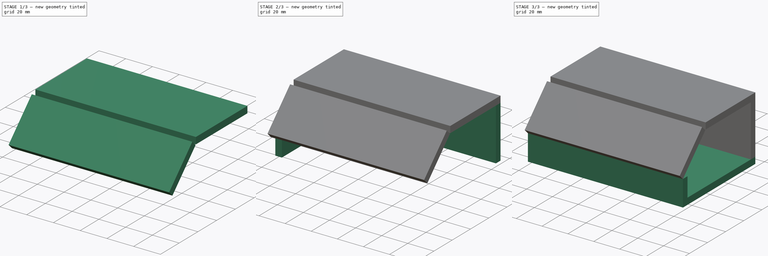
[diagram: build sequence overview — one tinted view per stage of 3, left to right]
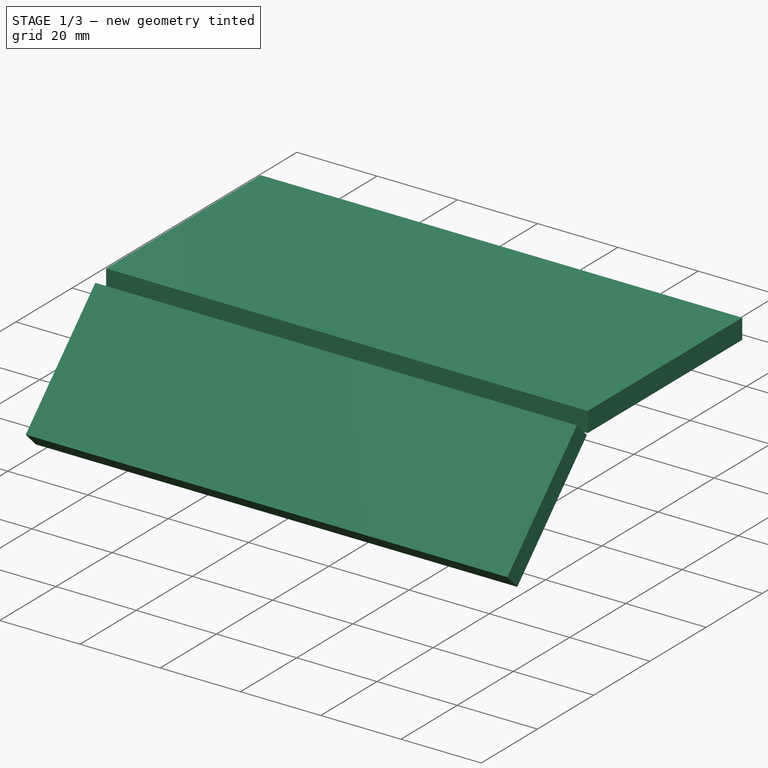
[diagram: stage 1 of 3 — iso view after this stage's code; geometry added in this stage tinted green]
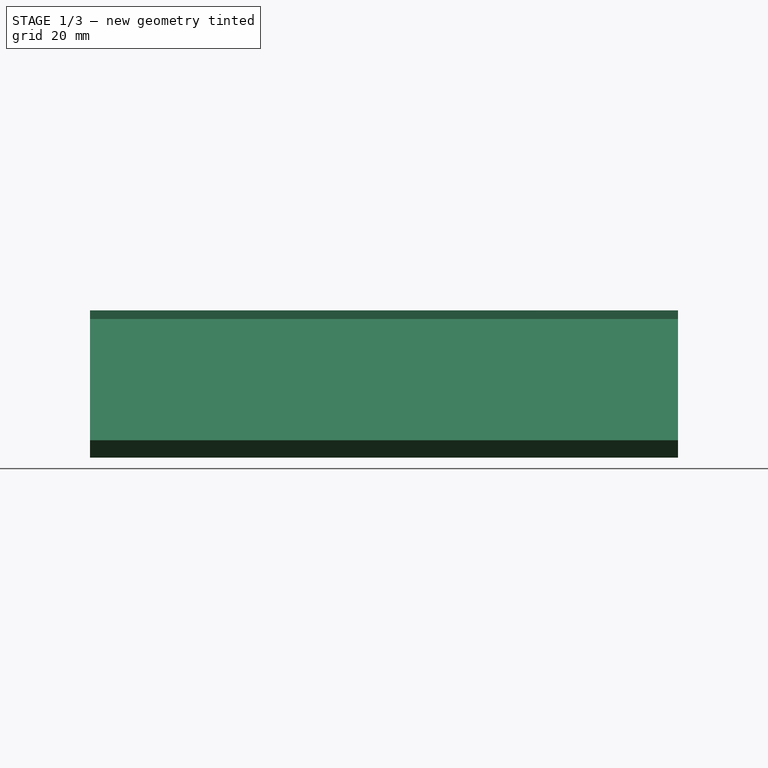
[diagram: stage 1 of 3 — front view after this stage's code; geometry added in this stage tinted green]
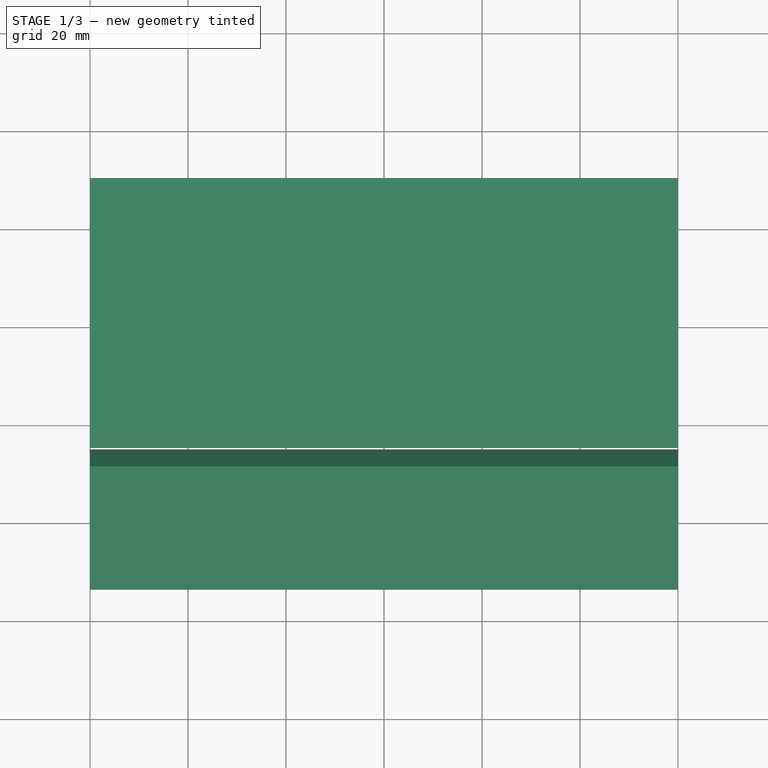
[diagram: stage 1 of 3 — top view after this stage's code; geometry added in this stage tinted green]
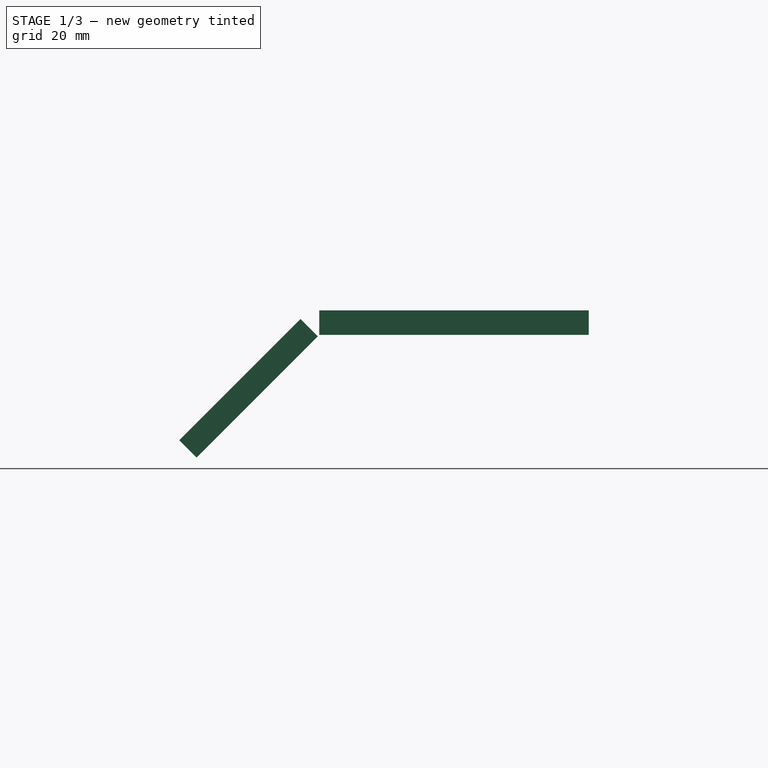
[diagram: stage 1 of 3 — right view after this stage's code; geometry added in this stage tinted green]
FCSTD DOCUMENT  (FreeCAD 0.15R4671 (Git))
Label: ctrlbox
License: All rights reserved
LicenseURL: http://en.wikipedia.org/wiki/All_rights_reserved
objects: Sketcher::SketchObject×6, PartDesign::Pad×6, Part::FeaturePython×1
note: 19 computed .brp shape members not serialized (recipe doc carries the construction recipe); baked Part::Feature solids carry a one-line shape summary decoded from their .brp

FEATURE [Sketcher::SketchObject] Sketch004
  Placement = pos=(0,0,50) rot=(1,0,0;0.785398rad)
  sketch-geometry (4):
    g0: LineSegment StartX=-60 StartY=-7.5 StartZ=0 EndX=60 EndY=-7.5 EndZ=0
    g1: LineSegment StartX=60 StartY=-7.5 StartZ=0 EndX=60 EndY=-42.5 EndZ=0
    g2: LineSegment StartX=60 StartY=-42.5 StartZ=0 EndX=-60 EndY=-42.5 EndZ=0
    g3: LineSegment StartX=-60 StartY=-42.5 StartZ=0 EndX=-60 EndY=-7.5 EndZ=0
  constraints (12):
    c: Coincident(g0,g1)
    c: Coincident(g1,g2)
    c: Coincident(g2,g3)
    c: Coincident(g3,g0)
    c: Horizontal(g0)
    c: Horizontal(g2)
    c: Vertical(g1)
    c: Vertical(g3)
    c: DistanceX(g0,g0) = 120
    c: DistanceY(g3,g3) = 35
    c: Symmetric(g0,g0,g-2)
    c: DistanceY(g0,g-1) = 7.5
FEATURE [PartDesign::Pad] Pad004
  Length = 5
  Length2 = 100
  Placement = pos=(0,0,50) rot=(1,0,0;0.785398rad)
  Sketch = -> Sketch004
  Type = 0
FEATURE [Sketcher::SketchObject] Sketch005
  Placement = pos=(0,0,45) rot=(0,0,1;0rad)
  sketch-geometry (4):
    g0: LineSegment StartX=-60 StartY=50 StartZ=0 EndX=60 EndY=50 EndZ=0
    g1: LineSegment StartX=60 StartY=50 StartZ=0 EndX=60 EndY=-5 EndZ=0
    g2: LineSegment StartX=60 StartY=-5 StartZ=0 EndX=-60 EndY=-5 EndZ=0
    g3: LineSegment StartX=-60 StartY=-5 StartZ=0 EndX=-60 EndY=50 EndZ=0
  constraints (12):
    c: Coincident(g0,g1)
    c: Coincident(g1,g2)
    c: Coincident(g2,g3)
    c: Coincident(g3,g0)
    c: Horizontal(g0)
    c: Horizontal(g2)
    c: Vertical(g1)
    c: Vertical(g3)
    c: Symmetric(g0,g0,g-2)
    c: DistanceX(g0,g0) = 120
    c: DistanceY(g3,g3) = 55
    c: DistanceY(g2,g-1) = 5
FEATURE [PartDesign::Pad] Pad005
  Length = 5
  Length2 = 100
  Placement = pos=(0,0,45) rot=(0,0,1;0rad)
  Sketch = -> Sketch005
  Type = 0
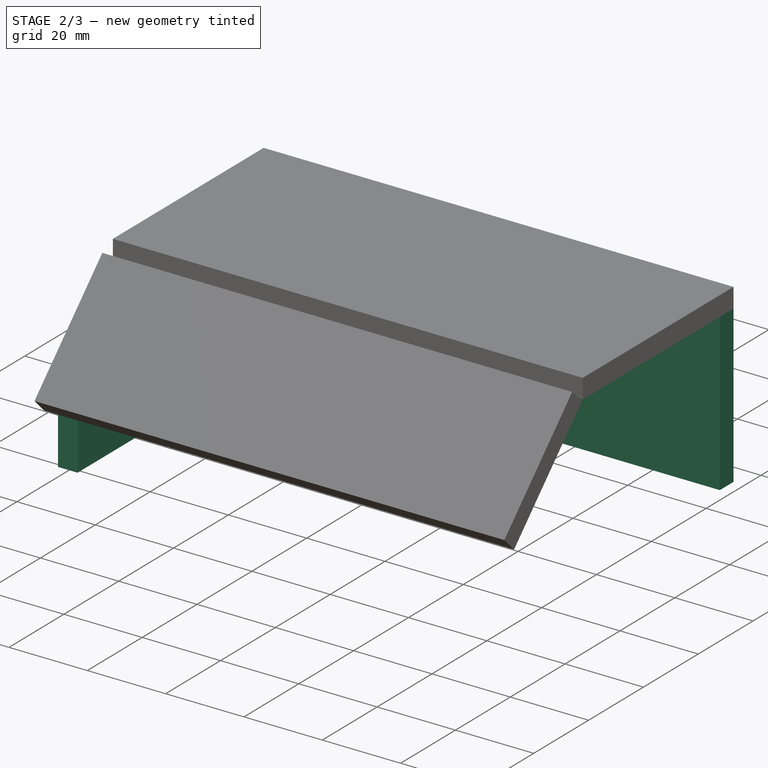
[diagram: stage 2 of 3 — iso view after this stage's code; geometry added in this stage tinted green]
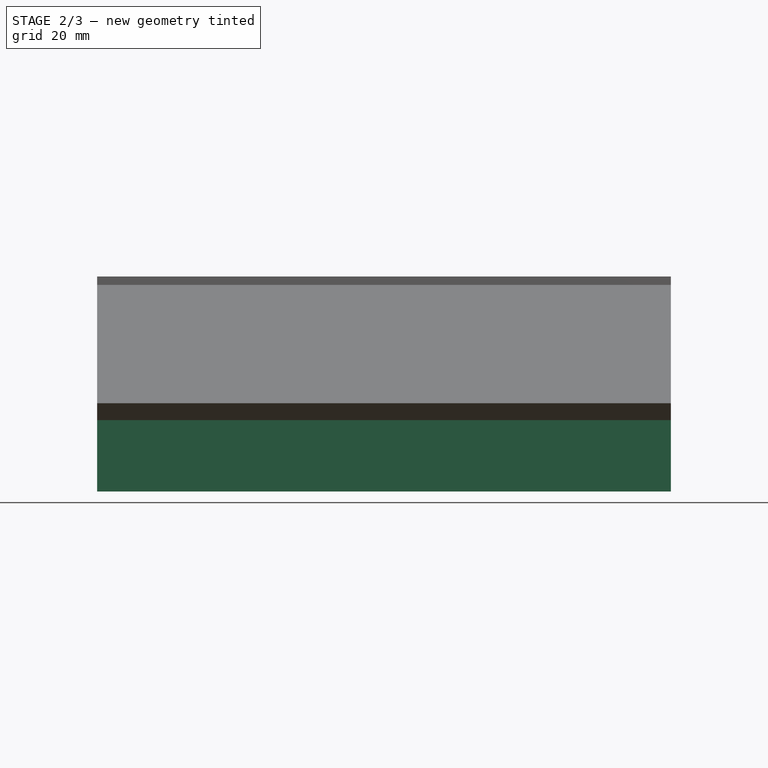
[diagram: stage 2 of 3 — front view after this stage's code; geometry added in this stage tinted green]
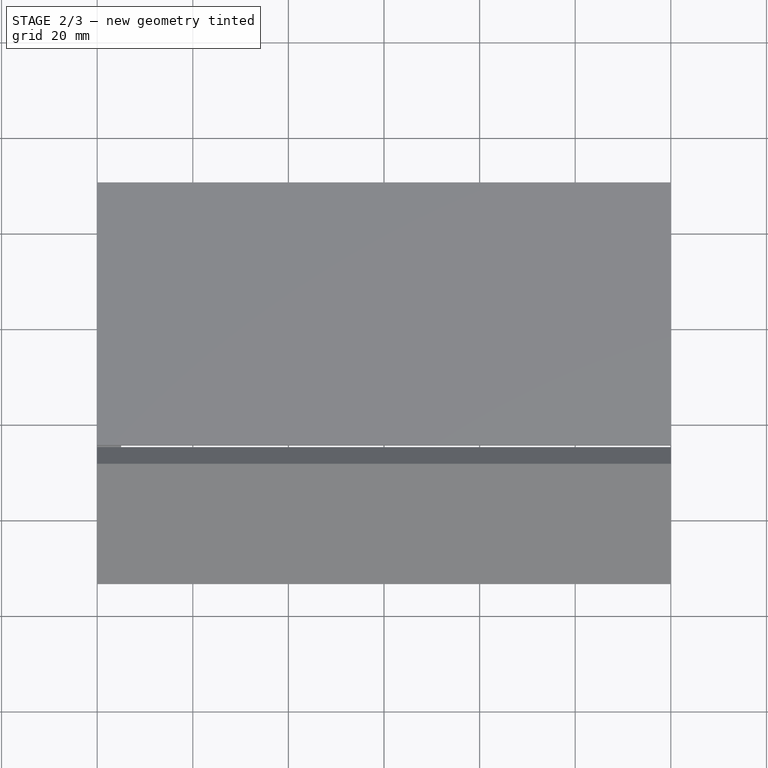
[diagram: stage 2 of 3 — top view after this stage's code; geometry added in this stage tinted green]
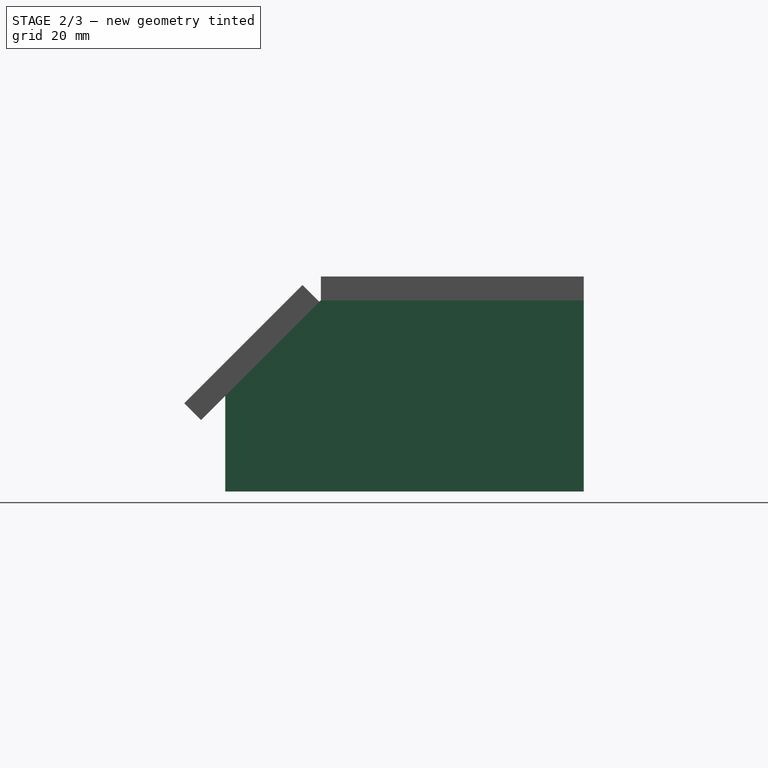
[diagram: stage 2 of 3 — right view after this stage's code; geometry added in this stage tinted green]
FEATURE [Sketcher::SketchObject] Sketch002
  Placement = pos=(0,50,0) rot=(1,0,0;1.5708rad)
  sketch-geometry (4):
    g0: LineSegment StartX=-60 StartY=45 StartZ=0 EndX=60 EndY=45 EndZ=0
    g1: LineSegment StartX=60 StartY=45 StartZ=0 EndX=60 EndY=5 EndZ=0
    g2: LineSegment StartX=60 StartY=5 StartZ=0 EndX=-60 EndY=5 EndZ=0
    g3: LineSegment StartX=-60 StartY=5 StartZ=0 EndX=-60 EndY=45 EndZ=0
  constraints (12):
    c: Coincident(g0,g1)
    c: Coincident(g1,g2)
    c: Coincident(g2,g3)
    c: Coincident(g3,g0)
    c: Horizontal(g0)
    c: Horizontal(g2)
    c: Vertical(g1)
    c: Vertical(g3)
    c: Symmetric(g0,g0,g-2)
    c: DistanceY(g-1,g2) = 5
    c: DistanceX(g0,g0) = 120
    c: DistanceY(g3,g3) = 40
FEATURE [PartDesign::Pad] Pad002
  Length = 5
  Length2 = 100
  Placement = pos=(0,50,0) rot=(1,0,0;1.5708rad)
  Sketch = -> Sketch002
  Type = 0
FEATURE [Sketcher::SketchObject] Sketch003
  Placement = pos=(55,0,0) rot=(0.57735,0.57735,0.57735;2.0944rad)
  sketch-geometry (5):
    g0: LineSegment StartX=45 StartY=45 StartZ=0 EndX=45 EndY=5 EndZ=0
    g1: LineSegment StartX=45 StartY=5 StartZ=0 EndX=-25 EndY=5 EndZ=0
    g2: LineSegment StartX=-25 StartY=5 StartZ=0 EndX=-25 EndY=25 EndZ=0
    g3: LineSegment StartX=-25 StartY=25 StartZ=0 EndX=-5 EndY=45 EndZ=0
    g4: LineSegment StartX=-5 StartY=45 StartZ=0 EndX=45 EndY=45 EndZ=0
  constraints (15):
    c: Vertical(g0)
    c: Coincident(g0,g1)
    c: Horizontal(g1)
    c: Coincident(g1,g2)
    c: Vertical(g2)
    c: DistanceY(g0,g0) = 40
    c: DistanceY(g-1,g0) = 5
    c: DistanceX(g1,g1) = 70
    c: DistanceY(g2,g2) = 20
    c: Coincident(g3,g4)
    c: Horizontal(g4)
    c: Coincident(g0,g4)
    c: Coincident(g2,g3)
    c: DistanceX(g4,g4) = 50
    c: DistanceX(g-1,g0) = 45
FEATURE [PartDesign::Pad] Pad003
  Length = 5
  Length2 = 100
  Placement = pos=(55,0,0) rot=(0.57735,0.57735,0.57735;2.0944rad)
  Sketch = -> Sketch003
  Type = 0
FEATURE [Part::FeaturePython] Clone  label="Clone of Pad003"  # Draft clone (typed FeaturePython)
  Objects = -> [Pad003]
  Placement = pos=(-60,0,0) rot=(0.57735,0.57735,0.57735;2.0944rad)
  Scale = (1,1,1)
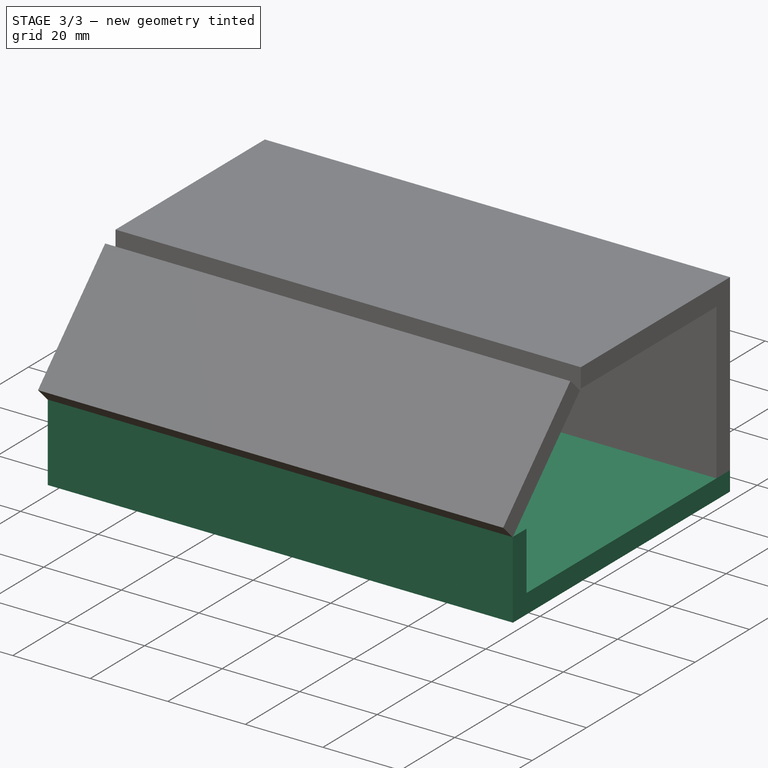
[diagram: stage 3 of 3 — iso view after this stage's code; geometry added in this stage tinted green]
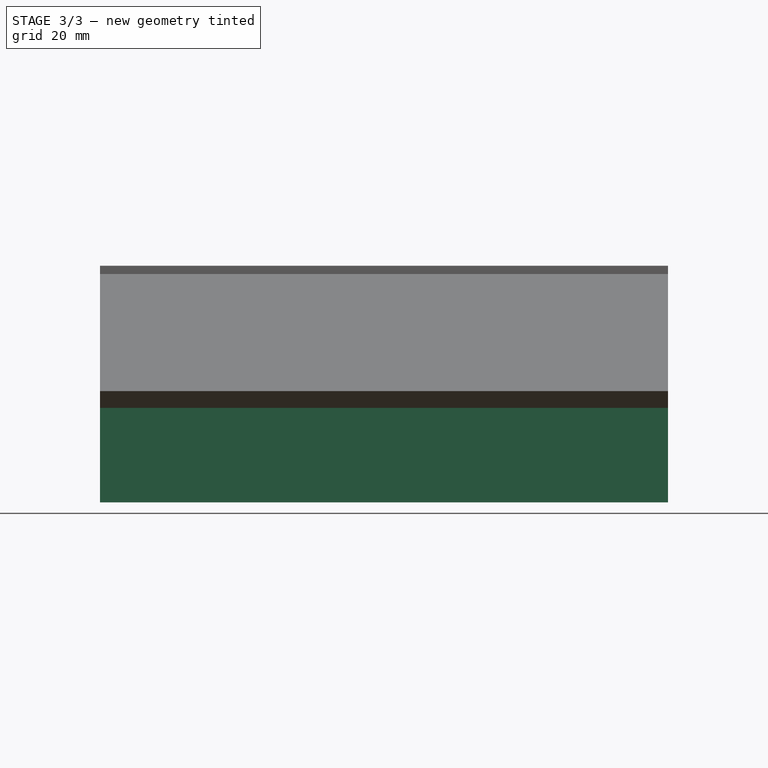
[diagram: stage 3 of 3 — front view after this stage's code; geometry added in this stage tinted green]
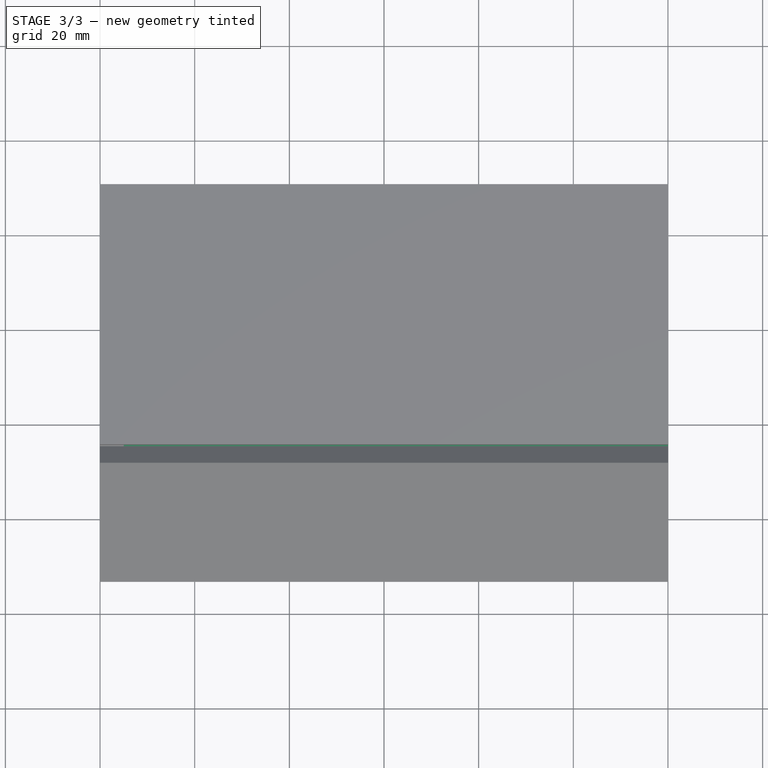
[diagram: stage 3 of 3 — top view after this stage's code; geometry added in this stage tinted green]
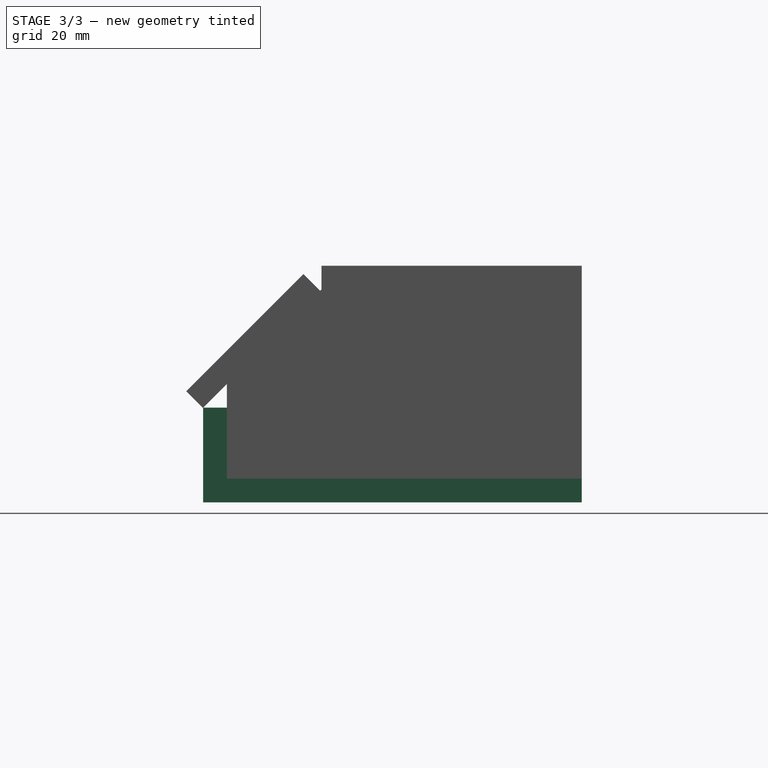
[diagram: stage 3 of 3 — right view after this stage's code; geometry added in this stage tinted green]
FEATURE [Sketcher::SketchObject] Sketch
  sketch-geometry (4):
    g0: LineSegment StartX=-60 StartY=50 StartZ=0 EndX=60 EndY=50 EndZ=0
    g1: LineSegment StartX=60 StartY=50 StartZ=0 EndX=60 EndY=-30 EndZ=0
    g2: LineSegment StartX=60 StartY=-30 StartZ=0 EndX=-60 EndY=-30 EndZ=0
    g3: LineSegment StartX=-60 StartY=-30 StartZ=0 EndX=-60 EndY=50 EndZ=0
  constraints (12):
    c: Coincident(g0,g1)
    c: Coincident(g1,g2)
    c: Coincident(g2,g3)
    c: Coincident(g3,g0)
    c: Horizontal(g0)
    c: Horizontal(g2)
    c: Vertical(g1)
    c: Vertical(g3)
    c: Symmetric(g0,g0,g-2)
    c: DistanceX(g0,g0) = 120
    c: DistanceY(g3,g3) = 80
    c: DistanceY(g-1,g0) = 50
FEATURE [PartDesign::Pad] Pad
  Length = 5
  Length2 = 100
  Sketch = -> Sketch
  Type = 0
FEATURE [Sketcher::SketchObject] Sketch001
  Placement = pos=(0,-25,0) rot=(1,0,0;1.5708rad)
  sketch-geometry (4):
    g0: LineSegment StartX=-60 StartY=20 StartZ=0 EndX=60 EndY=20 EndZ=0
    g1: LineSegment StartX=60 StartY=20 StartZ=0 EndX=60 EndY=5 EndZ=0
    g2: LineSegment StartX=60 StartY=5 StartZ=0 EndX=-60 EndY=5 EndZ=0
    g3: LineSegment StartX=-60 StartY=5 StartZ=0 EndX=-60 EndY=20 EndZ=0
  constraints (12):
    c: Coincident(g0,g1)
    c: Coincident(g1,g2)
    c: Coincident(g2,g3)
    c: Coincident(g3,g0)
    c: Horizontal(g0)
    c: Horizontal(g2)
    c: Vertical(g1)
    c: Vertical(g3)
    c: Symmetric(g0,g0,g-2)
    c: DistanceY(g-1,g2) = 5
    c: DistanceX(g0,g0) = 120
    c: DistanceY(g3,g3) = 15
FEATURE [PartDesign::Pad] Pad001
  Length = 5
  Length2 = 100
  Placement = pos=(0,-25,0) rot=(1,0,0;1.5708rad)
  Sketch = -> Sketch001
  Type = 0
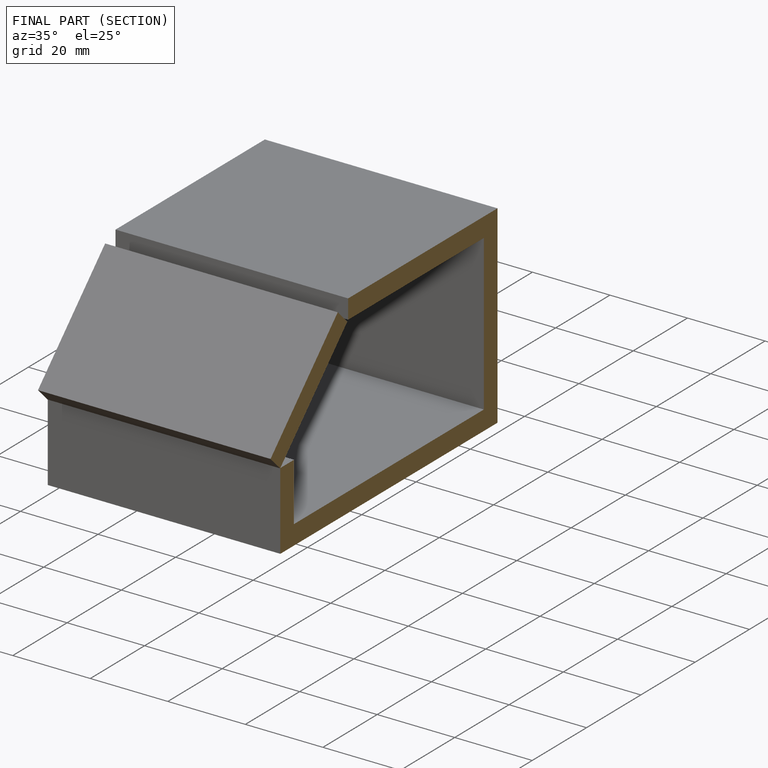
[diagram: finished part — half-section view (interior)]
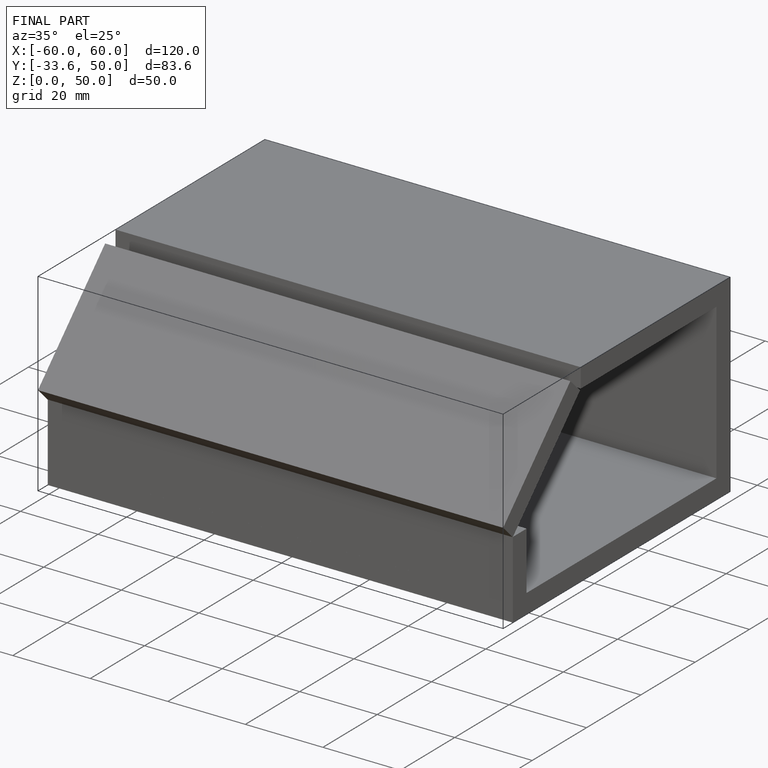
[diagram: finished part — iso view with bounding-box wireframe]
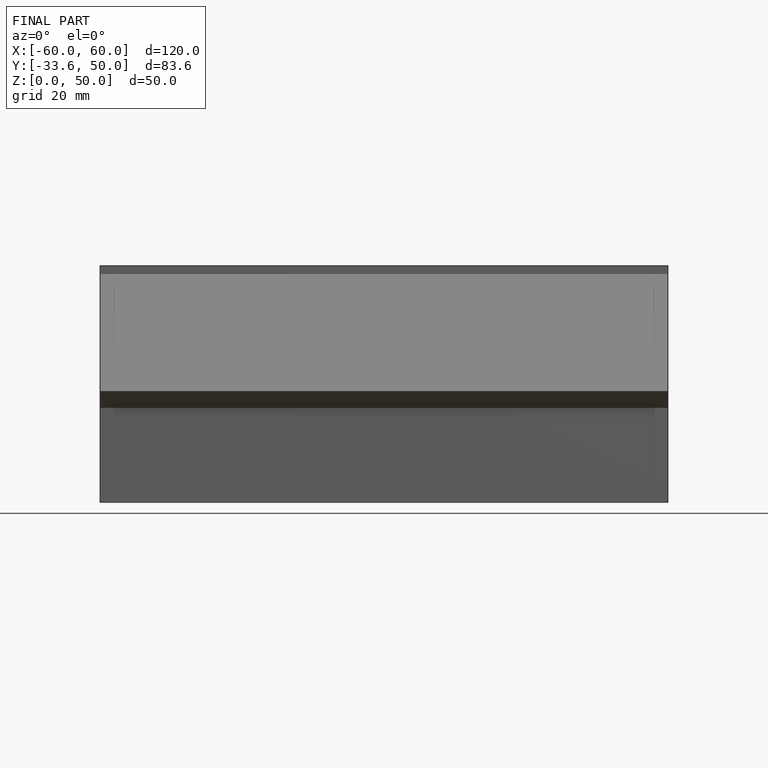
[diagram: finished part — front view with bounding-box wireframe]
